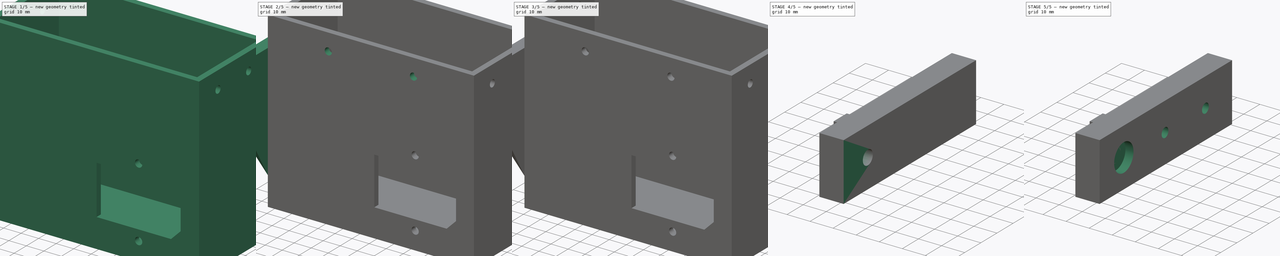
[diagram: build sequence overview — one tinted view per stage of 5, left to right]
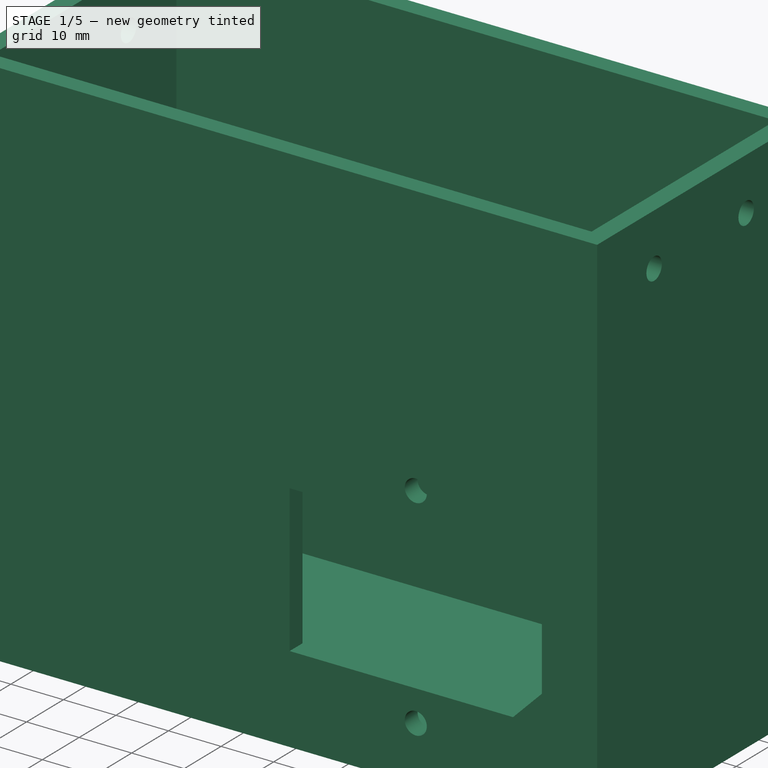
[diagram: stage 1 of 5 — iso view after this stage's code; geometry added in this stage tinted green]
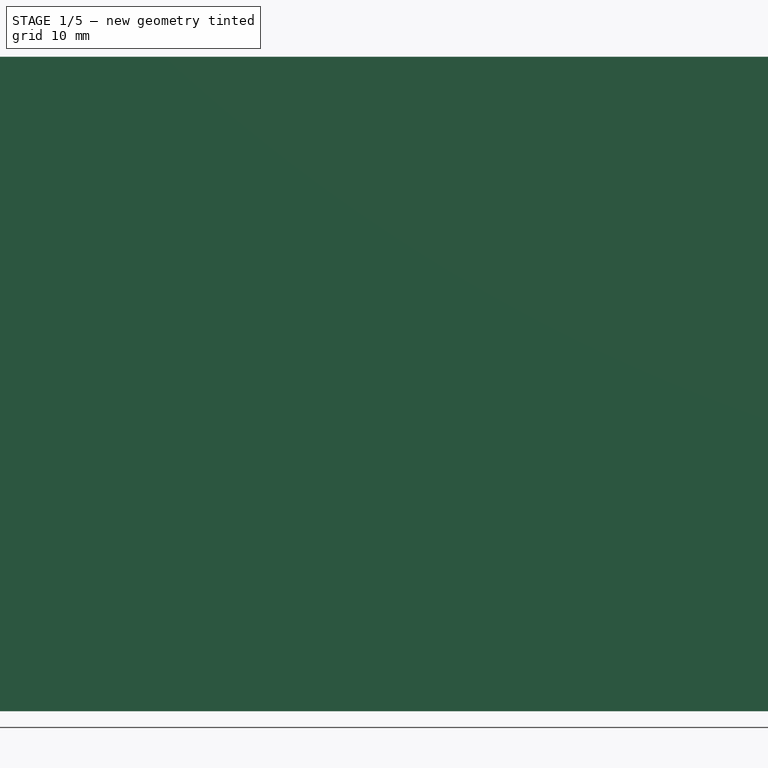
[diagram: stage 1 of 5 — front view after this stage's code; geometry added in this stage tinted green]
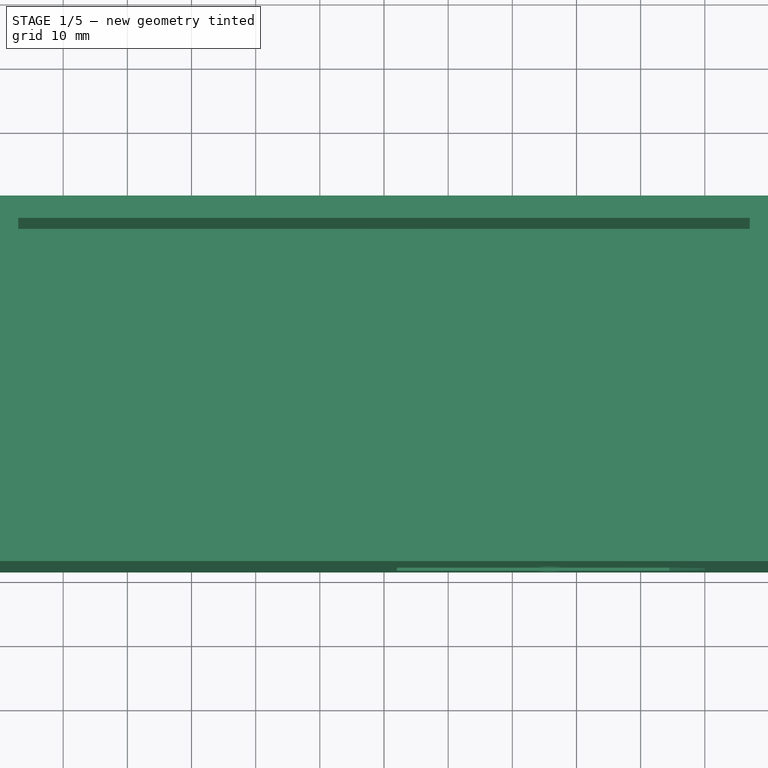
[diagram: stage 1 of 5 — top view after this stage's code; geometry added in this stage tinted green]
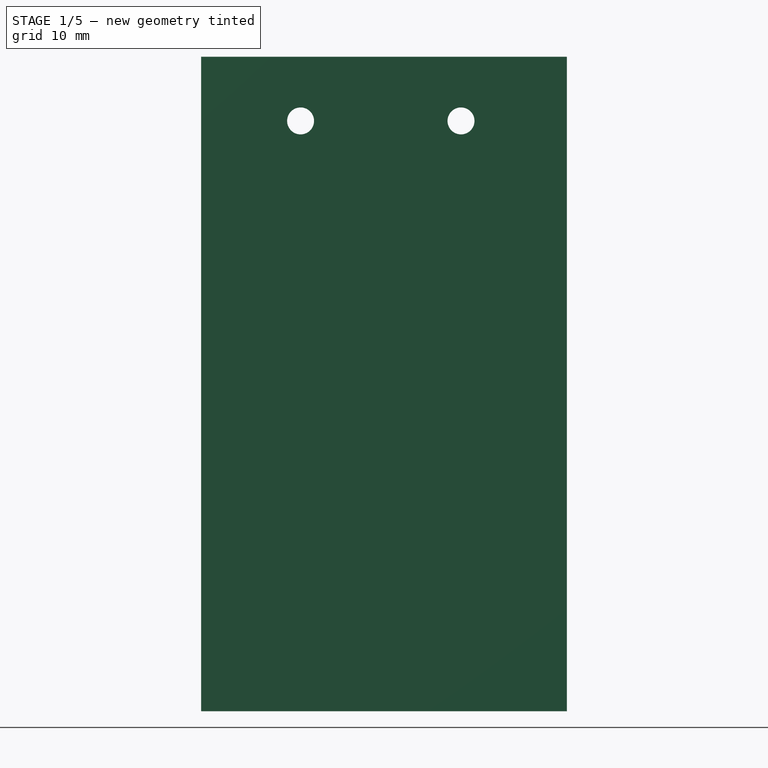
[diagram: stage 1 of 5 — right view after this stage's code; geometry added in this stage tinted green]
FCSTD DOCUMENT  (FreeCAD 0.19R)
Label: powersource
License: All rights reserved
LicenseURL: http://en.wikipedia.org/wiki/All_rights_reserved
objects: Sketcher::SketchObject×17, PartDesign::Pocket×11, PartDesign::Pad×6, PartDesign::Chamfer×2, PartDesign::Body×2, PartDesign::ShapeBinder×1
note: 58 computed .brp shape members not serialized (recipe doc carries the construction recipe); baked Part::Feature solids carry a one-line shape summary decoded from their .brp

FEATURE [Sketcher::SketchObject] Sketch
  MapMode = 5
  Support = -> [XY_Plane]
  sketch-geometry (4):
    g0: LineSegment StartX=-60.5 StartY=28.5 StartZ=0 EndX=60.5 EndY=28.5 EndZ=0
    g1: LineSegment StartX=60.5 StartY=28.5 StartZ=0 EndX=60.5 EndY=-28.5 EndZ=0
    g2: LineSegment StartX=60.5 StartY=-28.5 StartZ=0 EndX=-60.5 EndY=-28.5 EndZ=0
    g3: LineSegment StartX=-60.5 StartY=-28.5 StartZ=0 EndX=-60.5 EndY=28.5 EndZ=0
  constraints (10):
    c: Coincident(g0,g1)
    c: Coincident(g1,g2)
    c: Coincident(g2,g3)
    c: Coincident(g3,g0)
    c: Horizontal(g2)
    c: Vertical(g1)
    c: Symmetric(g0,g0,g-2)
    c: Symmetric(g0,g2,g-1)
    c: DistanceY(g3,g3) = 57
    c: DistanceX(g0,g0) = 121
FEATURE [PartDesign::Pad] Pad
  Length = 102
  Length2 = 100
  Profile = -> Sketch
  Type = 0
FEATURE [Sketcher::SketchObject] Sketch001
  MapMode = 5
  Placement = pos=(0,0,102) rot=(0,0,1;0rad)
  Support = -> [Pad]
  sketch-geometry (4):
    g0: LineSegment StartX=-57 StartY=25 StartZ=0 EndX=57 EndY=25 EndZ=0
    g1: LineSegment StartX=57 StartY=25 StartZ=0 EndX=57 EndY=-25 EndZ=0
    g2: LineSegment StartX=57 StartY=-25 StartZ=0 EndX=-57 EndY=-25 EndZ=0
    g3: LineSegment StartX=-57 StartY=-25 StartZ=0 EndX=-57 EndY=25 EndZ=0
  constraints (10):
    c: Coincident(g0,g1)
    c: Coincident(g1,g2)
    c: Coincident(g2,g3)
    c: Coincident(g3,g0)
    c: Horizontal(g2)
    c: Vertical(g1)
    c: Symmetric(g0,g0,g-2)
    c: Symmetric(g0,g2,g-1)
    c: DistanceY(g3,g3) = 50
    c: DistanceX(g0,g0) = 114
FEATURE [PartDesign::Pocket] Pocket
  BaseFeature = -> Pad
  Length = 98.5
  Length2 = 100
  Profile = -> Sketch001
  Type = 0
FEATURE [Sketcher::SketchObject] Sketch002
  ExternalGeometry = -> [Pocket]
  MapMode = 5
  Placement = pos=(0,-28.5,0) rot=(1,0,0;1.5708rad)
  Support = -> [Pocket]
  sketch-geometry (10):
    g0: LineSegment StartX=2 StartY=44.5 StartZ=0 EndX=44.5 EndY=44.5 EndZ=0
    g1: LineSegment StartX=44.5 StartY=44.5 StartZ=0 EndX=50 EndY=39 EndZ=0
    g2: LineSegment StartX=50 StartY=39 StartZ=0 EndX=50 EndY=22 EndZ=0
    g3: LineSegment StartX=50 StartY=22 StartZ=0 EndX=44.5 EndY=16.5 EndZ=0
    g4: LineSegment StartX=44.5 StartY=16.5 StartZ=0 EndX=2 EndY=16.5 EndZ=0
    g5: LineSegment StartX=2 StartY=16.5 StartZ=0 EndX=2 EndY=44.5 EndZ=0
    g6: LineSegment [constr] StartX=2 StartY=30.5 StartZ=0 EndX=50 EndY=30.5 EndZ=0
    g7: Circle CenterX=26 CenterY=50.5 CenterZ=0 NormalX=0 NormalY=0 NormalZ=1 AngleXU=0 Radius=2.1
    g8: Circle CenterX=26 CenterY=10.5 CenterZ=0 NormalX=0 NormalY=0 NormalZ=1 AngleXU=0 Radius=2.1
    g9: LineSegment [constr] StartX=26 StartY=50.5 StartZ=0 EndX=26 EndY=10.5 EndZ=0
  constraints (26):
    c: Horizontal(g0)
    c: Coincident(g0,g1)
    c: Coincident(g1,g2)
    c: Coincident(g2,g3)
    c: Coincident(g3,g4)
    c: Coincident(g4,g5)
    c: Coincident(g5,g0)
    c: PointOnObject(g6,g5)
    c: PointOnObject(g6,g2)
    c: Symmetric(g4,g0,g6)
    c: DistanceY(g5,g5) = 28
    c: Distance(g0,g2) = 48
    c: Symmetric(g3,g0,g6)
    c: Symmetric(g1,g2,g6)
    c: Angle(g3,g-1) = 2.35619
    c: Distance(g0,g2) = 5.5
    c: Distance(g2,g-3) = 10.5
    c: DistanceY(g-1,g3) = 16.5
    c: Equal(g8,g7)
    c: Symmetric(g7,g8,g6)
    c: Coincident(g9,g7)
    c: Coincident(g9,g8)
    c: Horizontal(g6)
    c: Symmetric(g6,g6,g9)
    c: Radius(g7) = 2.1
    c: Distance(g9) = 40
FEATURE [PartDesign::Pocket] Pocket001
  BaseFeature = -> Pocket
  Length = 5
  Length2 = 100
  Profile = -> Sketch002
  Type = 0
FEATURE [Sketcher::SketchObject] Sketch003
  ExternalGeometry = -> [Pocket001]
  MapMode = 5
  Placement = pos=(-60.5,0,0) rot=(0.57735,-0.57735,-0.57735;2.0944rad)
  Support = -> [Pocket001]
  sketch-geometry (3):
    g0: Circle CenterX=-12 CenterY=92 CenterZ=0 NormalX=0 NormalY=0 NormalZ=1 AngleXU=0 Radius=2.1
    g1: Circle CenterX=13 CenterY=92 CenterZ=0 NormalX=0 NormalY=0 NormalZ=1 AngleXU=0 Radius=2.1
    g2: LineSegment [constr] StartX=-12 StartY=92 StartZ=0 EndX=13 EndY=92 EndZ=0
  constraints (8):
    c: Equal(g0,g1)
    c: Radius(g0) = 2.1
    c: Distance(g0,g-3) = 16.5
    c: Coincident(g2,g0)
    c: Coincident(g2,g1)
    c: Horizontal(g2)
    c: DistanceX(g2,g2) = 25
    c: Distance(g-3,g2) = 10
FEATURE [PartDesign::Pocket] Pocket002
  BaseFeature = -> Pocket001
  Length = 5
  Length2 = 100
  Profile = -> Sketch003
  Type = 1
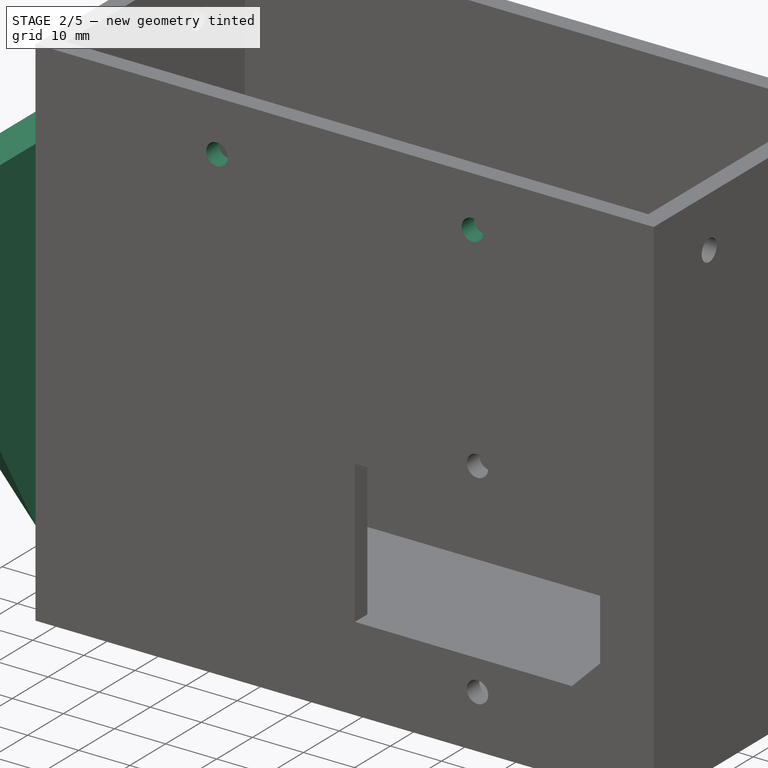
[diagram: stage 2 of 5 — iso view after this stage's code; geometry added in this stage tinted green]
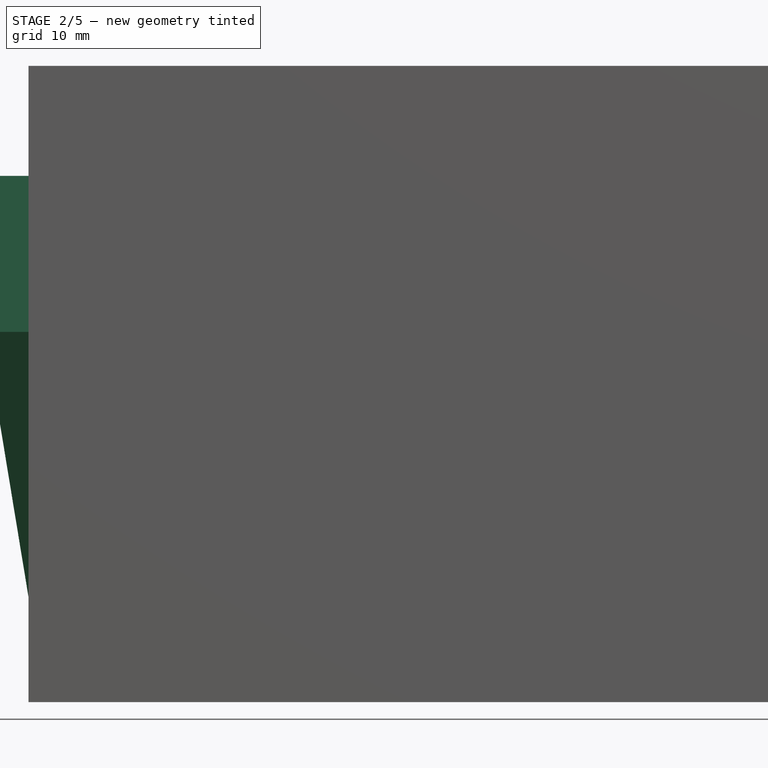
[diagram: stage 2 of 5 — front view after this stage's code; geometry added in this stage tinted green]
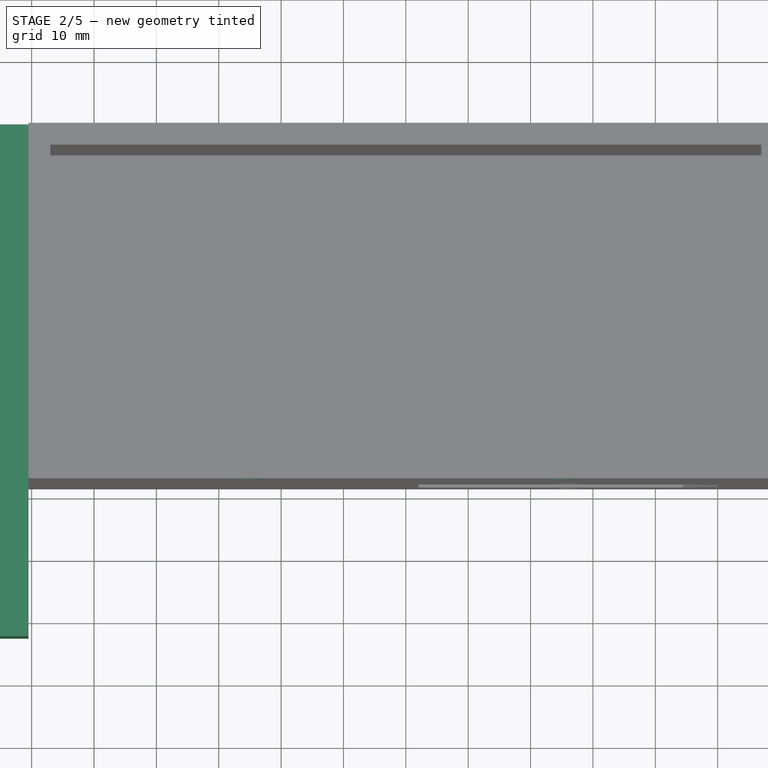
[diagram: stage 2 of 5 — top view after this stage's code; geometry added in this stage tinted green]
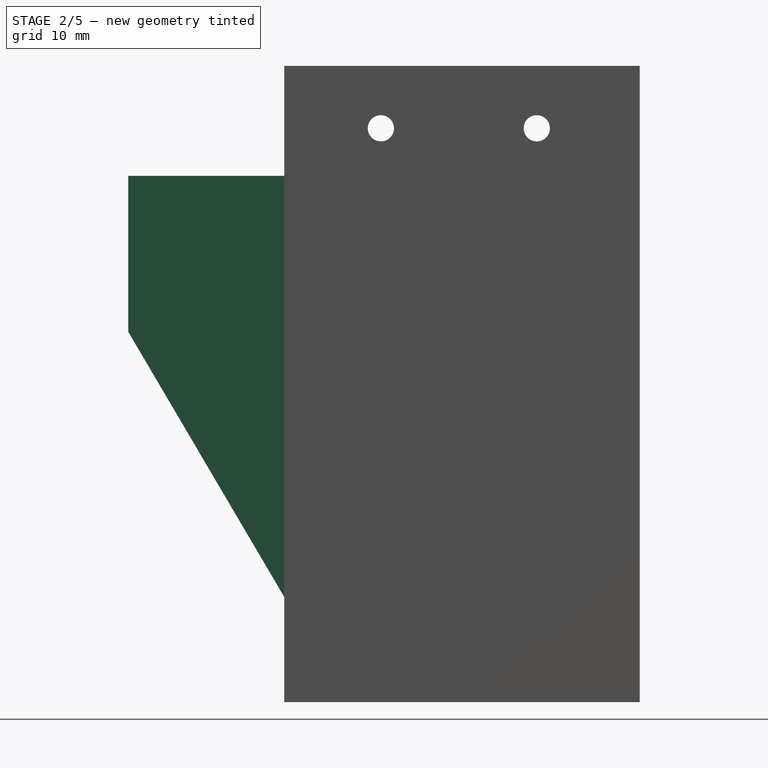
[diagram: stage 2 of 5 — right view after this stage's code; geometry added in this stage tinted green]
FEATURE [Sketcher::SketchObject] Sketch004
  ExternalGeometry = -> [Pocket002]
  MapMode = 5
  Placement = pos=(0,-28.5,0) rot=(1,0,0;1.5708rad)
  Support = -> [Pocket002]
  sketch-geometry (2):
    g0: Circle CenterX=-25 CenterY=92 CenterZ=0 NormalX=0 NormalY=0 NormalZ=1 AngleXU=0 Radius=2.1
    g1: Circle CenterX=25 CenterY=92 CenterZ=0 NormalX=0 NormalY=0 NormalZ=1 AngleXU=0 Radius=2.1
  constraints (5):
    c: Symmetric(g1,g0,g-2)
    c: Radius(g1) = 2.1
    c: Equal(g0,g1)
    c: Distance(g1,g0) = 50
    c: Distance(g0,g-3) = 10
FEATURE [PartDesign::Pocket] Pocket003
  BaseFeature = -> Pocket002
  Length = 5
  Length2 = 100
  Profile = -> Sketch004
  Type = 0
FEATURE [Sketcher::SketchObject] Sketch005
  ExternalGeometry = -> [Pocket003]
  MapMode = 5
  Placement = pos=(-60.5,0,0) rot=(0.57735,-0.57735,-0.57735;2.0944rad)
  Support = -> [Pocket003]
  sketch-geometry (4):
    g0: LineSegment StartX=-28.5 StartY=84.3647 StartZ=0 EndX=53.5 EndY=84.3647 EndZ=0
    g1: LineSegment StartX=53.5 StartY=84.3647 StartZ=0 EndX=53.5 EndY=16.8624 EndZ=0
    g2: LineSegment StartX=53.5 StartY=16.8624 StartZ=0 EndX=-28.5 EndY=16.8624 EndZ=0
    g3: LineSegment StartX=-28.5 StartY=16.8624 StartZ=0 EndX=-28.5 EndY=84.3647 EndZ=0
  constraints (10):
    c: Coincident(g0,g1)
    c: Coincident(g1,g2)
    c: Coincident(g2,g3)
    c: Coincident(g3,g0)
    c: Horizontal(g0)
    c: Horizontal(g2)
    c: Vertical(g1)
    c: Vertical(g3)
    c: PointOnObject(g0,g-3)
    c: Distance(g0,g-4) = 25
FEATURE [PartDesign::Pad] Pad001
  BaseFeature = -> Pocket003
  Length = 7
  Length2 = 100
  Profile = -> Sketch005
  Type = 0
FEATURE [Sketcher::SketchObject] Sketch006
  ExternalGeometry = -> [Pad001]
  MapMode = 5
  Placement = pos=(0,-53.5,0) rot=(1,0,0;1.5708rad)
  Support = -> [Pad001]
  sketch-geometry (3):
    g0: LineSegment StartX=-60.5 StartY=16.8624 StartZ=0 EndX=-67.5 EndY=59.3647 EndZ=0
    g1: LineSegment StartX=-67.5 StartY=59.3647 StartZ=0 EndX=-67.5 EndY=16.8624 EndZ=0
    g2: LineSegment StartX=-67.5 StartY=16.8624 StartZ=0 EndX=-60.5 EndY=16.8624 EndZ=0
  constraints (7):
    c: Coincident(g-4,g0)
    c: PointOnObject(g0,g-3)
    c: Coincident(g0,g1)
    c: Coincident(g1,g-3)
    c: Coincident(g1,g2)
    c: Coincident(g2,g0)
    c: Distance(g0,g-3) = 25
FEATURE [PartDesign::Pocket] Pocket004
  BaseFeature = -> Pad001
  Length = 5
  Length2 = 100
  Profile = -> Sketch006
  Type = 1
FEATURE [Sketcher::SketchObject] Sketch007
  ExternalGeometry = -> [Pocket004]
  MapMode = 5
  Placement = pos=(-60.5,0,0) rot=(0.57735,0.57735,0.57735;2.0944rad)
  Support = -> [Pocket004]
  sketch-geometry (3):
    g0: LineSegment StartX=-28.5 StartY=16.8624 StartZ=0 EndX=-53.5 EndY=59.3647 EndZ=0
    g1: LineSegment StartX=-53.5 StartY=59.3647 StartZ=0 EndX=-53.5 EndY=16.8624 EndZ=0
    g2: LineSegment StartX=-53.5 StartY=16.8624 StartZ=0 EndX=-28.5 EndY=16.8624 EndZ=0
  constraints (7):
    c: Coincident(g-4,g0)
    c: PointOnObject(g0,g-5)
    c: Coincident(g0,g1)
    c: Coincident(g1,g-5)
    c: Coincident(g1,g2)
    c: Coincident(g2,g0)
    c: Distance(g0,g-5) = 25
FEATURE [PartDesign::Pocket] Pocket005
  BaseFeature = -> Pocket004
  Length = 10
  Length2 = 100
  Profile = -> Sketch007
  Type = 0
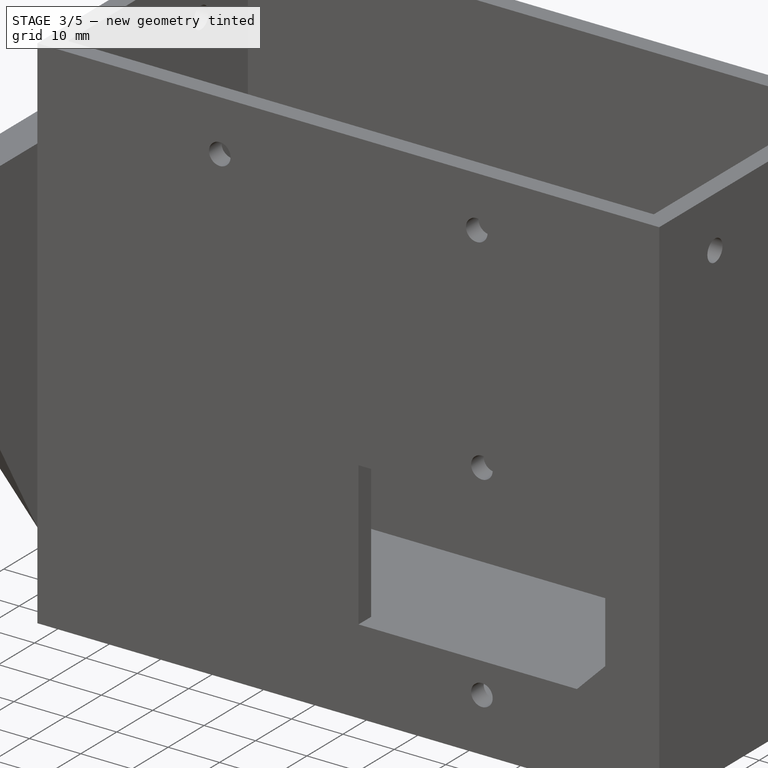
[diagram: stage 3 of 5 — iso view after this stage's code; geometry added in this stage tinted green]
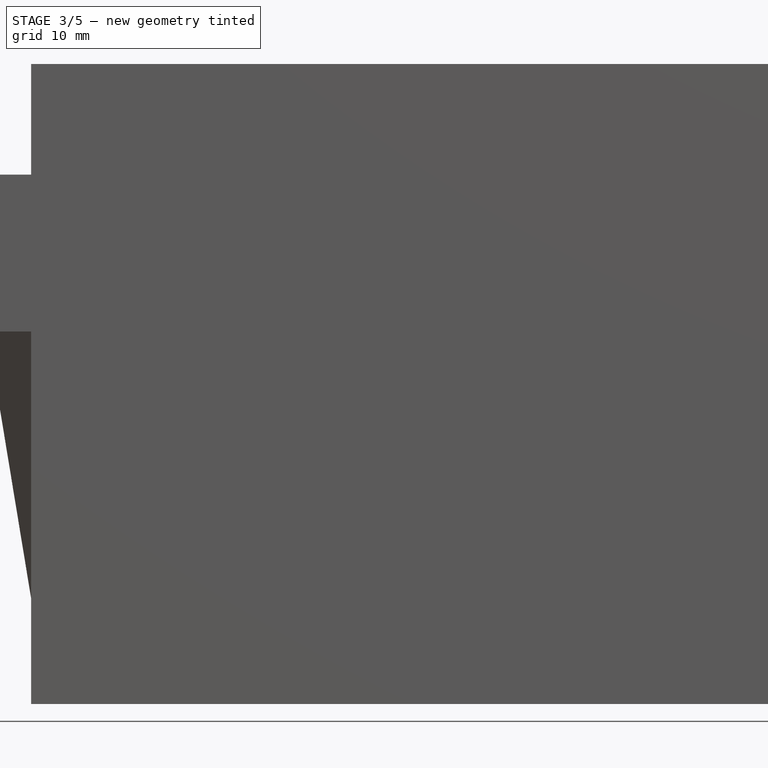
[diagram: stage 3 of 5 — front view after this stage's code; geometry added in this stage tinted green]
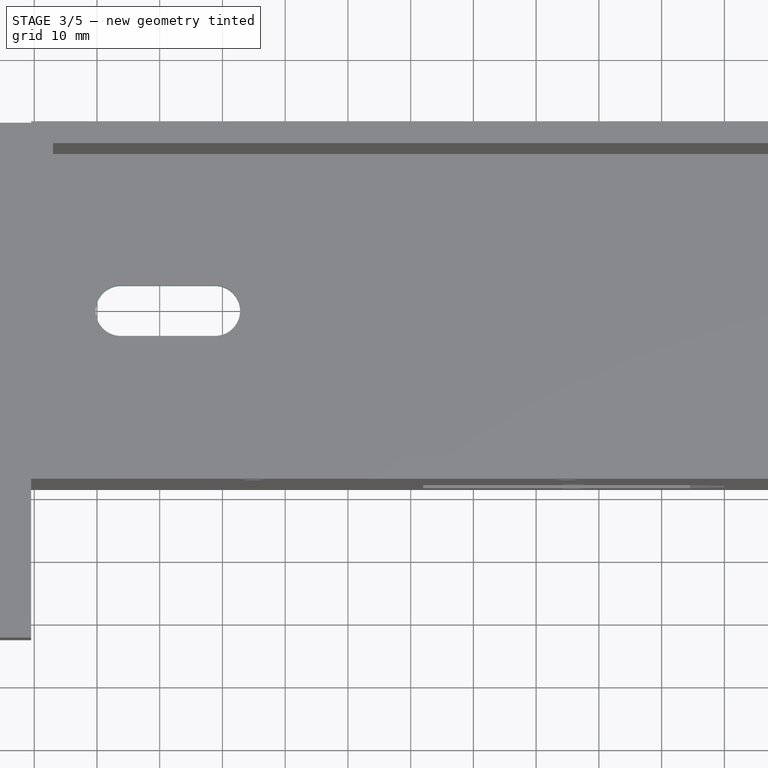
[diagram: stage 3 of 5 — top view after this stage's code; geometry added in this stage tinted green]
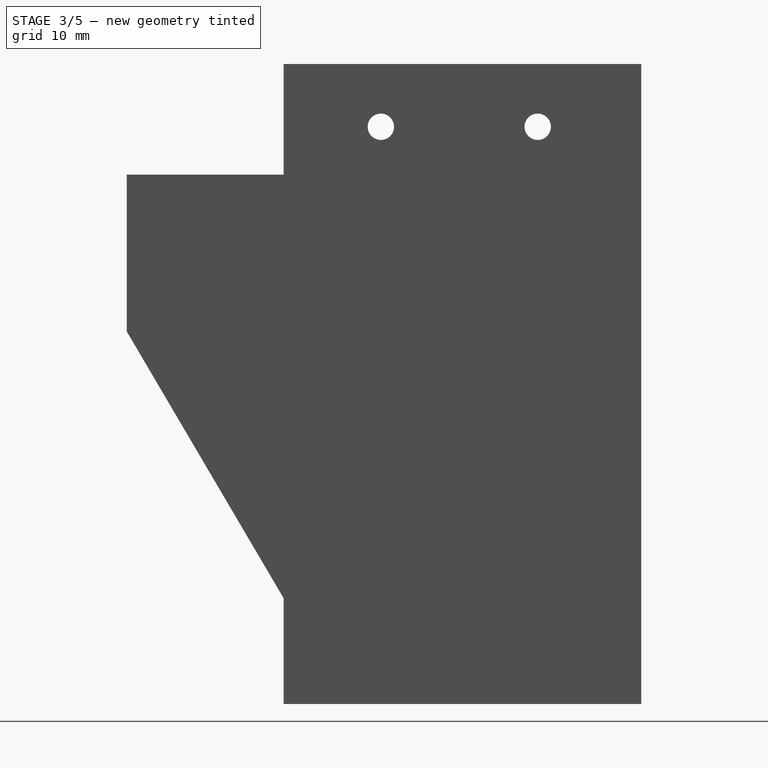
[diagram: stage 3 of 5 — right view after this stage's code; geometry added in this stage tinted green]
FEATURE [Sketcher::SketchObject] Sketch009
  MapMode = 5
  Placement = pos=(-67.5,0,0) rot=(0.57735,-0.57735,-0.57735;2.0944rad)
  Support = -> [Pocket005]
  sketch-geometry (9):
    g0: LineSegment [constr] StartX=38.5 StartY=84.3647 StartZ=0 EndX=38.5 EndY=59.3647 EndZ=0
    g1: LineSegment StartX=34.45 StartY=84.3647 StartZ=0 EndX=42.55 EndY=84.3647 EndZ=0
    g2: LineSegment StartX=42.55 StartY=84.3647 StartZ=0 EndX=42.55 EndY=76.1147 EndZ=0
    g3: LineSegment StartX=42.55 StartY=76.1147 StartZ=0 EndX=34.45 EndY=76.1147 EndZ=0
    g4: LineSegment StartX=34.45 StartY=76.1147 StartZ=0 EndX=34.45 EndY=84.3647 EndZ=0
    g5: LineSegment StartX=34.45 StartY=59.3647 StartZ=0 EndX=42.55 EndY=59.3647 EndZ=0
    g6: LineSegment StartX=42.55 StartY=59.3647 StartZ=0 EndX=42.55 EndY=67.6147 EndZ=0
    g7: LineSegment StartX=42.55 StartY=67.6147 StartZ=0 EndX=34.45 EndY=67.6147 EndZ=0
    g8: LineSegment StartX=34.45 StartY=67.6147 StartZ=0 EndX=34.45 EndY=59.3647 EndZ=0
  constraints (21):
    c: Vertical(g0)
    c: Coincident(g1,g2)
    c: Coincident(g2,g3)
    c: Coincident(g3,g4)
    c: Coincident(g4,g1)
    c: Horizontal(g1)
    c: Vertical(g2)
    c: Vertical(g4)
    c: Coincident(g5,g6)
    c: Coincident(g6,g7)
    c: Coincident(g7,g8)
    c: Coincident(g8,g5)
    c: Horizontal(g5)
    c: Vertical(g6)
    c: Vertical(g8)
    c: Equal(g3,g7)
    c: Symmetric(g6,g7,g0)
    c: Symmetric(g2,g3,g0)
    c: DistanceX(g3,g3) = 8.1
    c: Equal(g6,g2)
    c: Distance(g6,g3) = 8.5
FEATURE [PartDesign::Pad] Pad002
  BaseFeature = -> Pocket005
  Length = 1.5
  Length2 = 100
  Profile = -> Sketch009
  Type = 0
FEATURE [PartDesign::Chamfer] Chamfer
  Angle = 45
  Base = -> Pad002 [Edge84]
  BaseFeature = -> Pad002
  ChamferType = 0
  FlipDirection = false
  Size = 1.49
  Size2 = 1
  SupportTransform = false
FEATURE [Sketcher::SketchObject] Sketch008
  MapMode = 5
  Placement = pos=(0,0,3.5) rot=(0,0,1;0rad)
  Support = -> [Chamfer]
  sketch-geometry (4):
    g0: ArcOfCircle CenterX=-46.1927 CenterY=0 CenterZ=0 NormalX=0 NormalY=0 NormalZ=1 AngleXU=0 Radius=4 StartAngle=1.5708 EndAngle=4.71239
    g1: ArcOfCircle CenterX=-31.1927 CenterY=1e-16 CenterZ=0 NormalX=0 NormalY=0 NormalZ=1 AngleXU=0 Radius=4 StartAngle=4.71239 EndAngle=7.85398
    g2: LineSegment StartX=-46.1927 StartY=-4 StartZ=0 EndX=-31.1927 EndY=-4 EndZ=0
    g3: LineSegment StartX=-46.1927 StartY=4 StartZ=0 EndX=-31.1927 EndY=4 EndZ=0
  constraints (9):
    c: Tangent(g0,g3)
    c: Tangent(g0,g2)
    c: Tangent(g2,g1)
    c: Tangent(g3,g1)
    c: Horizontal(g2)
    c: Equal(g0,g1)
    c: PointOnObject(g0,g-1)
    c: Radius(g1) = 4
    c: DistanceX(g0,g1) = 15
FEATURE [PartDesign::Pocket] Pocket006
  BaseFeature = -> Chamfer
  Length = 5
  Length2 = 100
  Profile = -> Sketch008
  Type = 0
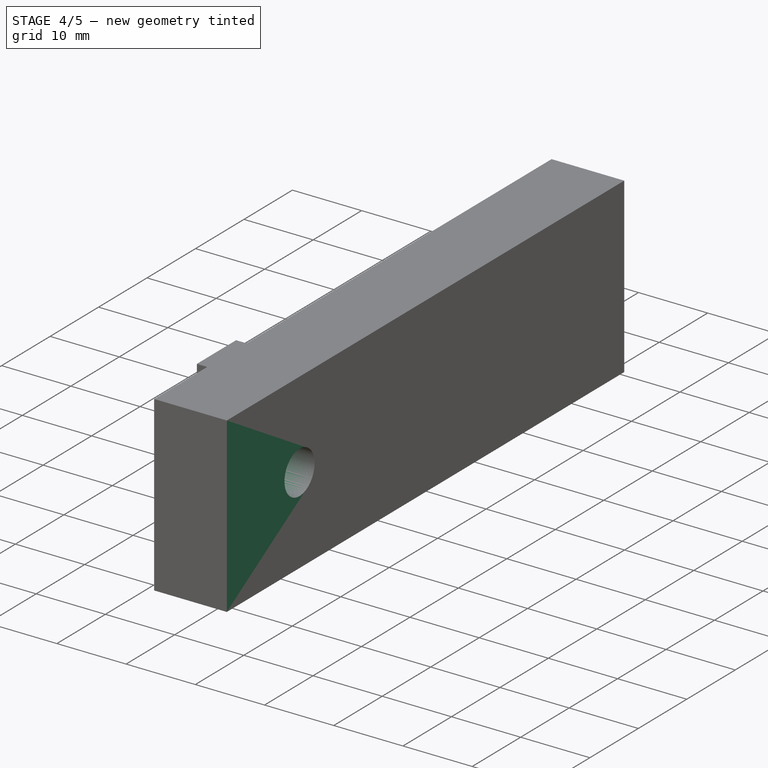
[diagram: stage 4 of 5 — iso view after this stage's code; geometry added in this stage tinted green]
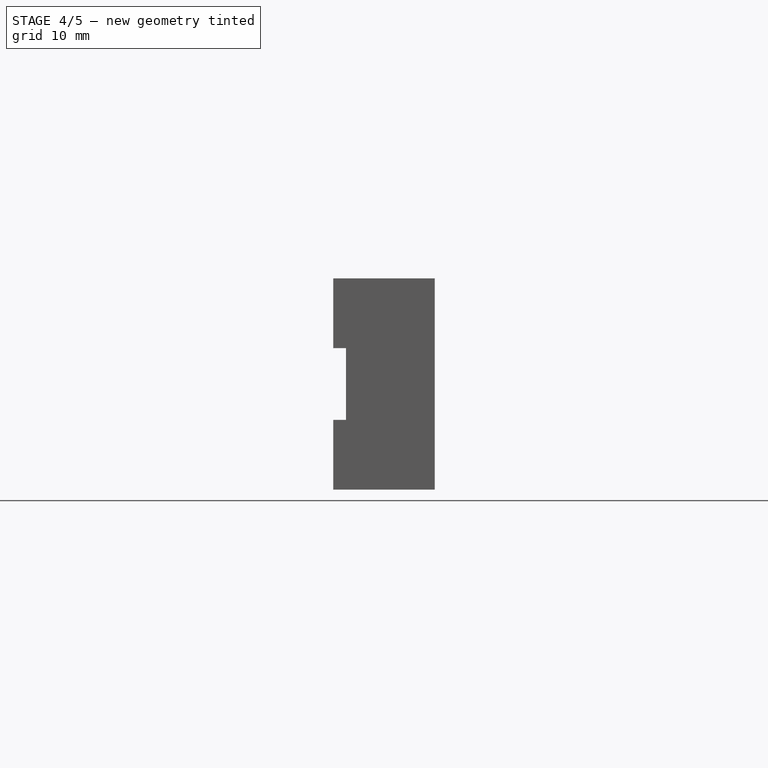
[diagram: stage 4 of 5 — front view after this stage's code; geometry added in this stage tinted green]
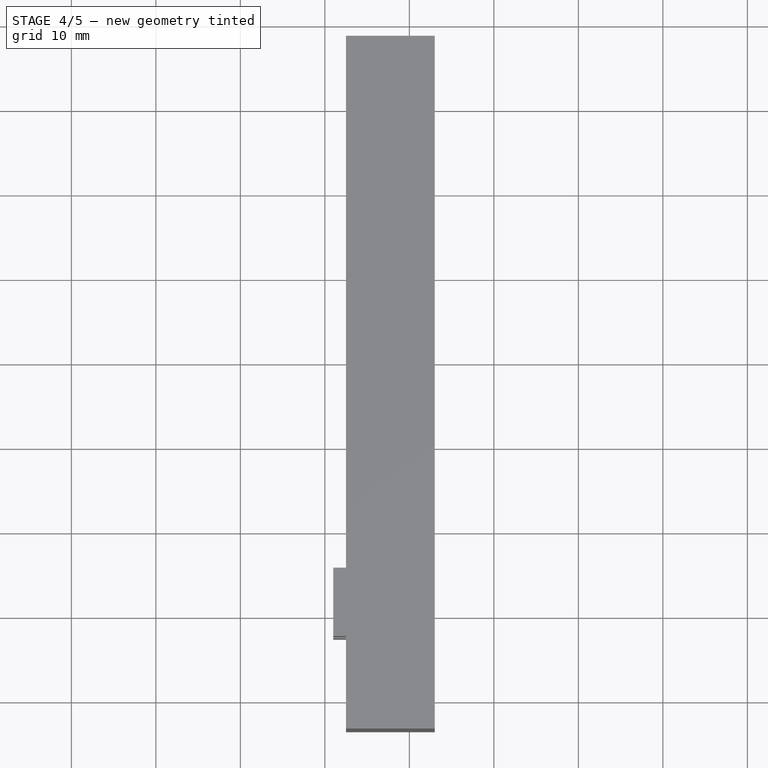
[diagram: stage 4 of 5 — top view after this stage's code; geometry added in this stage tinted green]
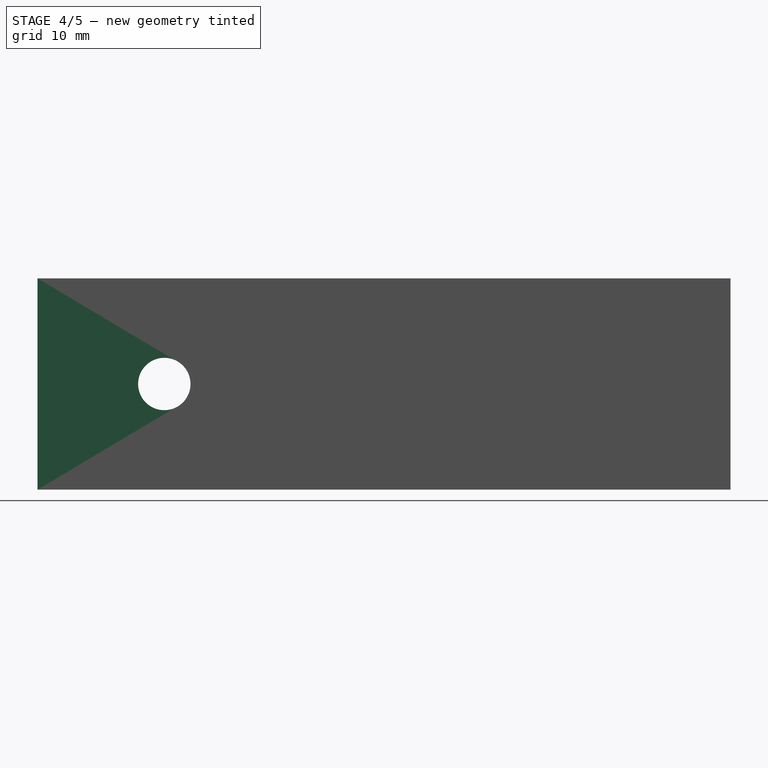
[diagram: stage 4 of 5 — right view after this stage's code; geometry added in this stage tinted green]
FEATURE [PartDesign::Chamfer] Chamfer001
  Angle = 45
  Base = -> Pocket006 [Edge44]
  BaseFeature = -> Pocket006
  ChamferType = 0
  FlipDirection = false
  Size = 1.49
  Size2 = 1
  SupportTransform = false
FEATURE [Sketcher::SketchObject] Sketch010
  ExternalGeometry = -> [Chamfer001]
  MapMode = 5
  Placement = pos=(-67.5,0,0) rot=(0.57735,-0.57735,-0.57735;2.0944rad)
  Support = -> [Chamfer001]
  sketch-geometry (2):
    g0: LineSegment [constr] StartX=38.5 StartY=84.3647 StartZ=0 EndX=38.5 EndY=59.3647 EndZ=0
    g1: Circle CenterX=38.5 CenterY=71.8647 CenterZ=0 NormalX=0 NormalY=0 NormalZ=1 AngleXU=0 Radius=3.1
  constraints (7):
    c: PointOnObject(g0,g-5)
    c: PointOnObject(g0,g-6)
    c: Vertical(g0)
    c: Distance(g-3,g0) = 15
    c: PointOnObject(g1,g0)
    c: Radius(g1) = 3.1
    c: Distance(g1,g-3) = 12.5
FEATURE [PartDesign::Pocket] Pocket007
  BaseFeature = -> Chamfer001
  Length = 5
  Length2 = 100
  Profile = -> Sketch010
  Type = 1
FEATURE [PartDesign::Body] Body
  Group = -> [Sketch,Pad,Sketch001,Pocket,Sketch002,Pocket001,Sketch003,Pocket002,Sketch004,Pocket003,Sketch005,Pad001,Sketch006,Pocket004,Sketch007,Pocket005,Sketch008,Sketch009,Pad002,Chamfer,Pocket006,Chamfer001,Sketch010,Pocket007]
  Origin = -> Origin
  Tip = -> Pocket007
FEATURE [PartDesign::ShapeBinder] ShapeBinder
  Support = -> [Pocket007]
  TraceSupport = false
FEATURE [Sketcher::SketchObject] Sketch011
  ExternalGeometry = -> [ShapeBinder]
  MapMode = 5
  Placement = pos=(-67.5,0,0) rot=(0.57735,-0.57735,-0.57735;2.0944rad)
  Support = -> [ShapeBinder]
  sketch-geometry (5):
    g0: LineSegment StartX=-28.5 StartY=84.3647 StartZ=0 EndX=53.5 EndY=84.3647 EndZ=0
    g1: LineSegment StartX=53.5 StartY=84.3647 StartZ=0 EndX=53.5 EndY=59.3647 EndZ=0
    g2: LineSegment StartX=53.5 StartY=59.3647 StartZ=0 EndX=-28.5 EndY=59.3647 EndZ=0
    g3: LineSegment StartX=-28.5 StartY=59.3647 StartZ=0 EndX=-28.5 EndY=84.3647 EndZ=0
    g4: Circle CenterX=38.5 CenterY=71.8647 CenterZ=0 NormalX=0 NormalY=0 NormalZ=1 AngleXU=0 Radius=3.1
  constraints (12):
    c: Coincident(g0,g1)
    c: Coincident(g1,g2)
    c: Coincident(g2,g3)
    c: Coincident(g3,g0)
    c: Horizontal(g0)
    c: Horizontal(g2)
    c: Vertical(g1)
    c: Vertical(g3)
    c: Coincident(g0,g-4)
    c: Coincident(g1,g-5)
    c: Coincident(g4,g-7)
    c: Equal(g-7,g4)
FEATURE [PartDesign::Pad] Pad003
  Length = 10.5
  Length2 = 100
  Profile = -> Sketch011
  Reversed = true
  Type = 0
FEATURE [Sketcher::SketchObject] Sketch013
  ExternalGeometry = -> [ShapeBinder]
  MapMode = 5
  Placement = pos=(-67.5,0,0) rot=(0.57735,-0.57735,-0.57735;2.0944rad)
  Support = -> [ShapeBinder]
  sketch-geometry (8):
    g0: LineSegment StartX=34.45 StartY=84.3647 StartZ=0 EndX=42.55 EndY=84.3647 EndZ=0
    g1: LineSegment StartX=42.55 StartY=84.3647 StartZ=0 EndX=42.55 EndY=76.1147 EndZ=0
    g2: LineSegment StartX=42.55 StartY=76.1147 StartZ=0 EndX=34.45 EndY=76.1147 EndZ=0
    g3: LineSegment StartX=34.45 StartY=76.1147 StartZ=0 EndX=34.45 EndY=84.3647 EndZ=0
    g4: LineSegment StartX=34.45 StartY=67.6147 StartZ=0 EndX=42.55 EndY=67.6147 EndZ=0
    g5: LineSegment StartX=42.55 StartY=67.6147 StartZ=0 EndX=42.55 EndY=59.3647 EndZ=0
    g6: LineSegment StartX=42.55 StartY=59.3647 StartZ=0 EndX=34.45 EndY=59.3647 EndZ=0
    g7: LineSegment StartX=34.45 StartY=59.3647 StartZ=0 EndX=34.45 EndY=67.6147 EndZ=0
  constraints (20):
    c: Coincident(g0,g1)
    c: Coincident(g1,g2)
    c: Coincident(g2,g3)
    c: Coincident(g3,g0)
    c: Horizontal(g0)
    c: Horizontal(g2)
    c: Vertical(g1)
    c: Vertical(g3)
    c: Coincident(g0,g-3)
    c: Coincident(g1,g-4)
    c: Coincident(g4,g5)
    c: Coincident(g5,g6)
    c: Coincident(g6,g7)
    c: Coincident(g7,g4)
    c: Horizontal(g4)
    c: Horizontal(g6)
    c: Vertical(g5)
    c: Vertical(g7)
    c: Coincident(g4,g-5)
    c: Coincident(g5,g-6)
FEATURE [PartDesign::Pad] Pad004
  BaseFeature = -> Pad003
  Length = 1.5
  Length2 = 100
  Profile = -> Sketch013
  Type = 0
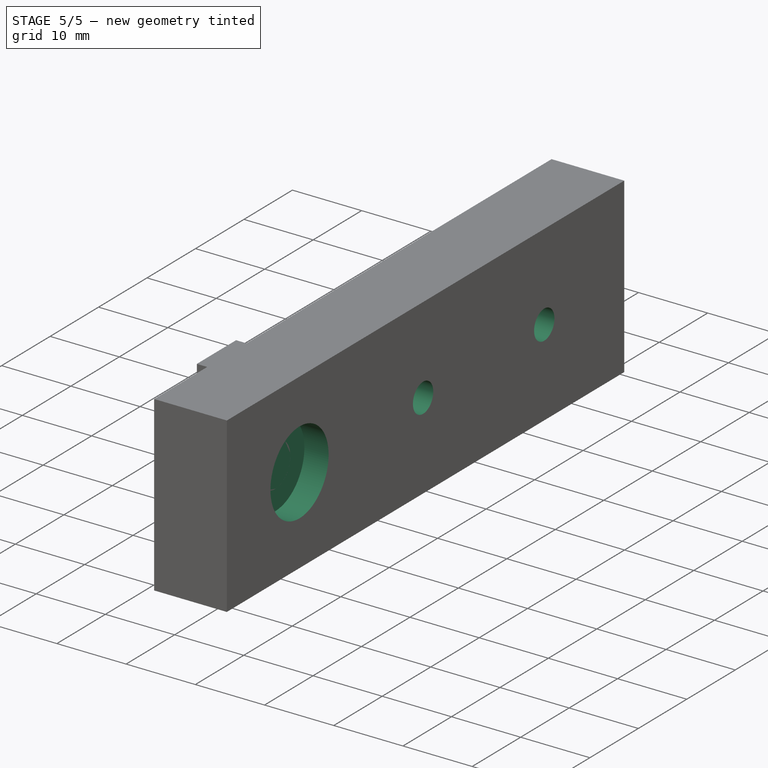
[diagram: stage 5 of 5 — iso view after this stage's code; geometry added in this stage tinted green]
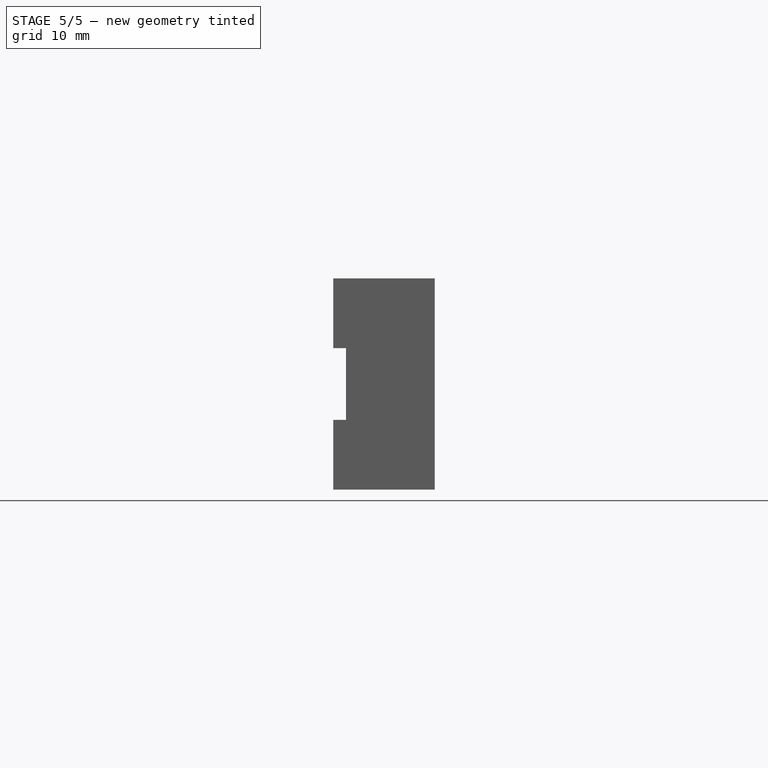
[diagram: stage 5 of 5 — front view after this stage's code; geometry added in this stage tinted green]
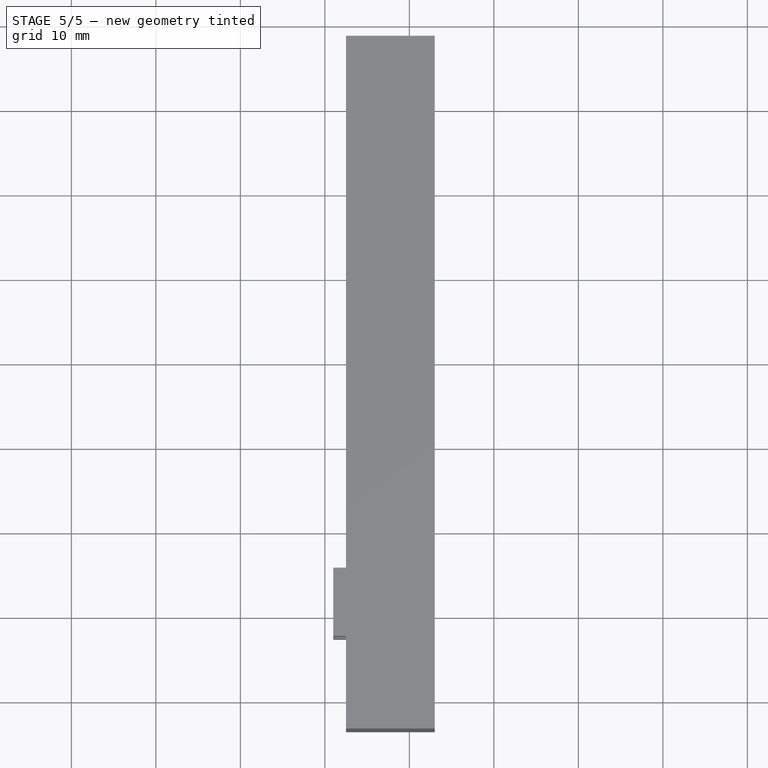
[diagram: stage 5 of 5 — top view after this stage's code; geometry added in this stage tinted green]
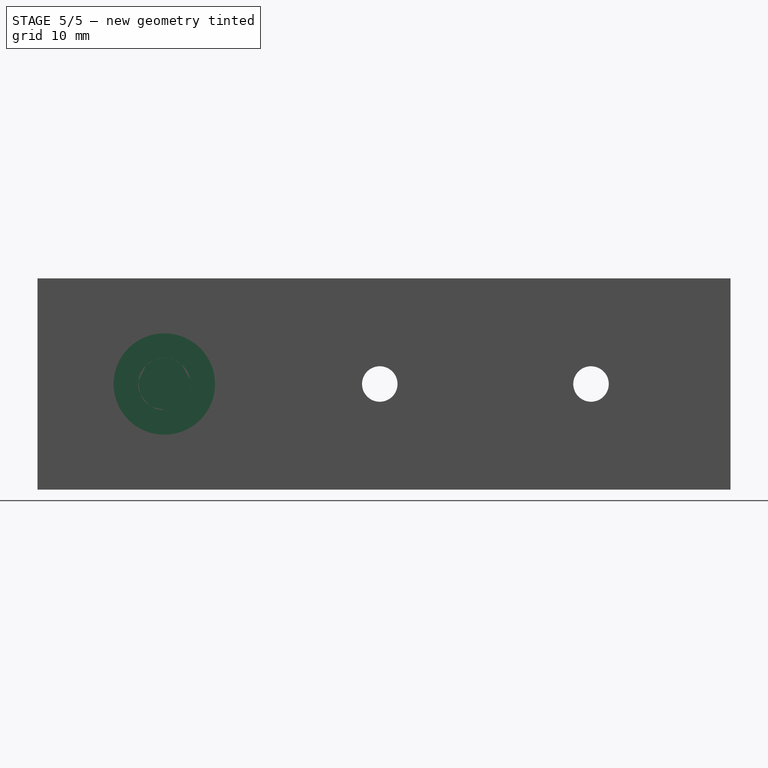
[diagram: stage 5 of 5 — right view after this stage's code; geometry added in this stage tinted green]
FEATURE [Sketcher::SketchObject] Sketch014
  ExternalGeometry = -> [Pad004]
  MapMode = 5
  Placement = pos=(-67.5,0,0) rot=(0.57735,-0.57735,-0.57735;2.0944rad)
  Support = -> [Pad004]
  sketch-geometry (3):
    g0: LineSegment [constr] StartX=-28.5 StartY=71.8647 StartZ=0 EndX=53.5 EndY=71.8647 EndZ=0
    g1: Circle CenterX=-12 CenterY=71.8647 CenterZ=0 NormalX=0 NormalY=0 NormalZ=1 AngleXU=0 Radius=2.1
    g2: Circle CenterX=13 CenterY=71.8647 CenterZ=0 NormalX=0 NormalY=0 NormalZ=1 AngleXU=0 Radius=2.1
  constraints (9):
    c: PointOnObject(g0,g-3)
    c: PointOnObject(g0,g-4)
    c: Symmetric(g-3,g-3,g0)
    c: PointOnObject(g1,g0)
    c: PointOnObject(g2,g0)
    c: Radius(g1) = 2.1
    c: Equal(g1,g2)
    c: Distance(g1,g2) = 25
    c: Distance(g1,g-3) = 16.5
FEATURE [PartDesign::Pocket] Pocket008
  BaseFeature = -> Pad004
  Length = 5
  Length2 = 100
  Profile = -> Sketch014
  Type = 1
FEATURE [Sketcher::SketchObject] Sketch015
  ExternalGeometry = -> [Pocket008]
  MapMode = 5
  Placement = pos=(-67.5,0,0) rot=(0.57735,-0.57735,-0.57735;2.0944rad)
  Support = -> [Pocket008]
  sketch-geometry (2):
    g0: Circle CenterX=-12 CenterY=71.8647 CenterZ=0 NormalX=0 NormalY=0 NormalZ=1 AngleXU=0 Radius=5
    g1: Circle CenterX=13 CenterY=71.8647 CenterZ=0 NormalX=0 NormalY=0 NormalZ=1 AngleXU=0 Radius=5
  constraints (4):
    c: Coincident(g0,g-3)
    c: Coincident(g1,g-4)
    c: Radius(g1) = 5
    c: Equal(g1,g0)
FEATURE [PartDesign::Pocket] Pocket009
  BaseFeature = -> Pocket008
  Length = 7
  Length2 = 100
  Profile = -> Sketch015
  Type = 0
FEATURE [Sketcher::SketchObject] Sketch016
  ExternalGeometry = -> [Pocket009]
  MapMode = 5
  Placement = pos=(-57,0,0) rot=(0.57735,0.57735,0.57735;2.0944rad)
  Support = -> [Pocket009]
  sketch-geometry (1):
    g0: Circle CenterX=-38.5 CenterY=71.8647 CenterZ=0 NormalX=0 NormalY=0 NormalZ=1 AngleXU=0 Radius=6
  constraints (2):
    c: Coincident(g0,g-3)
    c: Radius(g0) = 6
FEATURE [PartDesign::Pocket] Pocket010
  BaseFeature = -> Pocket009
  Length = 3.5
  Length2 = 100
  Profile = -> Sketch016
  Type = 0
FEATURE [Sketcher::SketchObject] Sketch017
  ExternalGeometry = -> [Pocket010]
  MapMode = 5
  Placement = pos=(-60.5,0,0) rot=(0.57735,0.57735,0.57735;2.0944rad)
  Support = -> [Pocket010]
  sketch-geometry (1):
    g0: Circle CenterX=-38.5 CenterY=71.8647 CenterZ=0 NormalX=0 NormalY=0 NormalZ=1 AngleXU=0 Radius=3.1
  constraints (2):
    c: Coincident(g0,g-3)
    c: Equal(g0,g-3)
FEATURE [PartDesign::Pad] Pad005
  BaseFeature = -> Pocket010
  Length = 0.2
  Length2 = 100
  Profile = -> Sketch017
  Reversed = true
  Type = 0
FEATURE [PartDesign::Body] Body001
  Group = -> [ShapeBinder,Sketch011,Pad003,Sketch013,Pad004,Sketch014,Pocket008,Sketch015,Pocket009,Sketch016,Pocket010,Sketch017,Pad005]
  Origin = -> Origin001
  Placement = pos=(0,0,119) rot=(0,0,1;0rad)
  Tip = -> Pad005
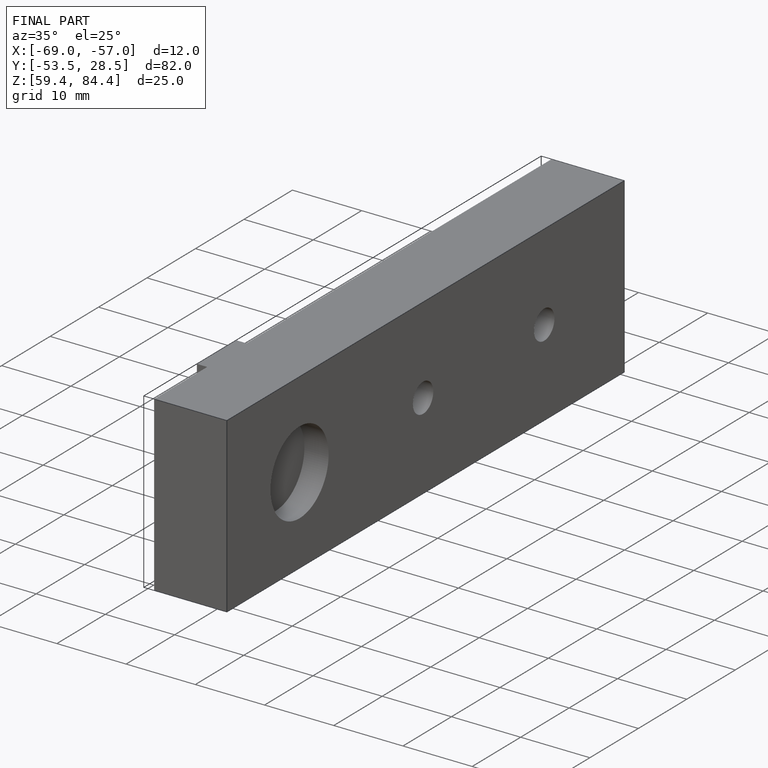
[diagram: finished part — iso view with bounding-box wireframe]
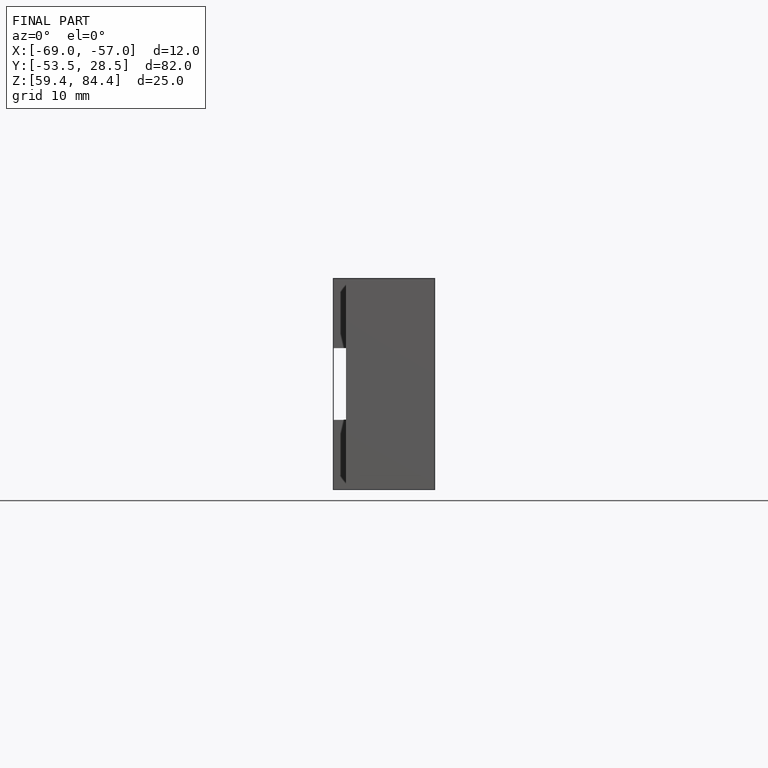
[diagram: finished part — front view with bounding-box wireframe]
